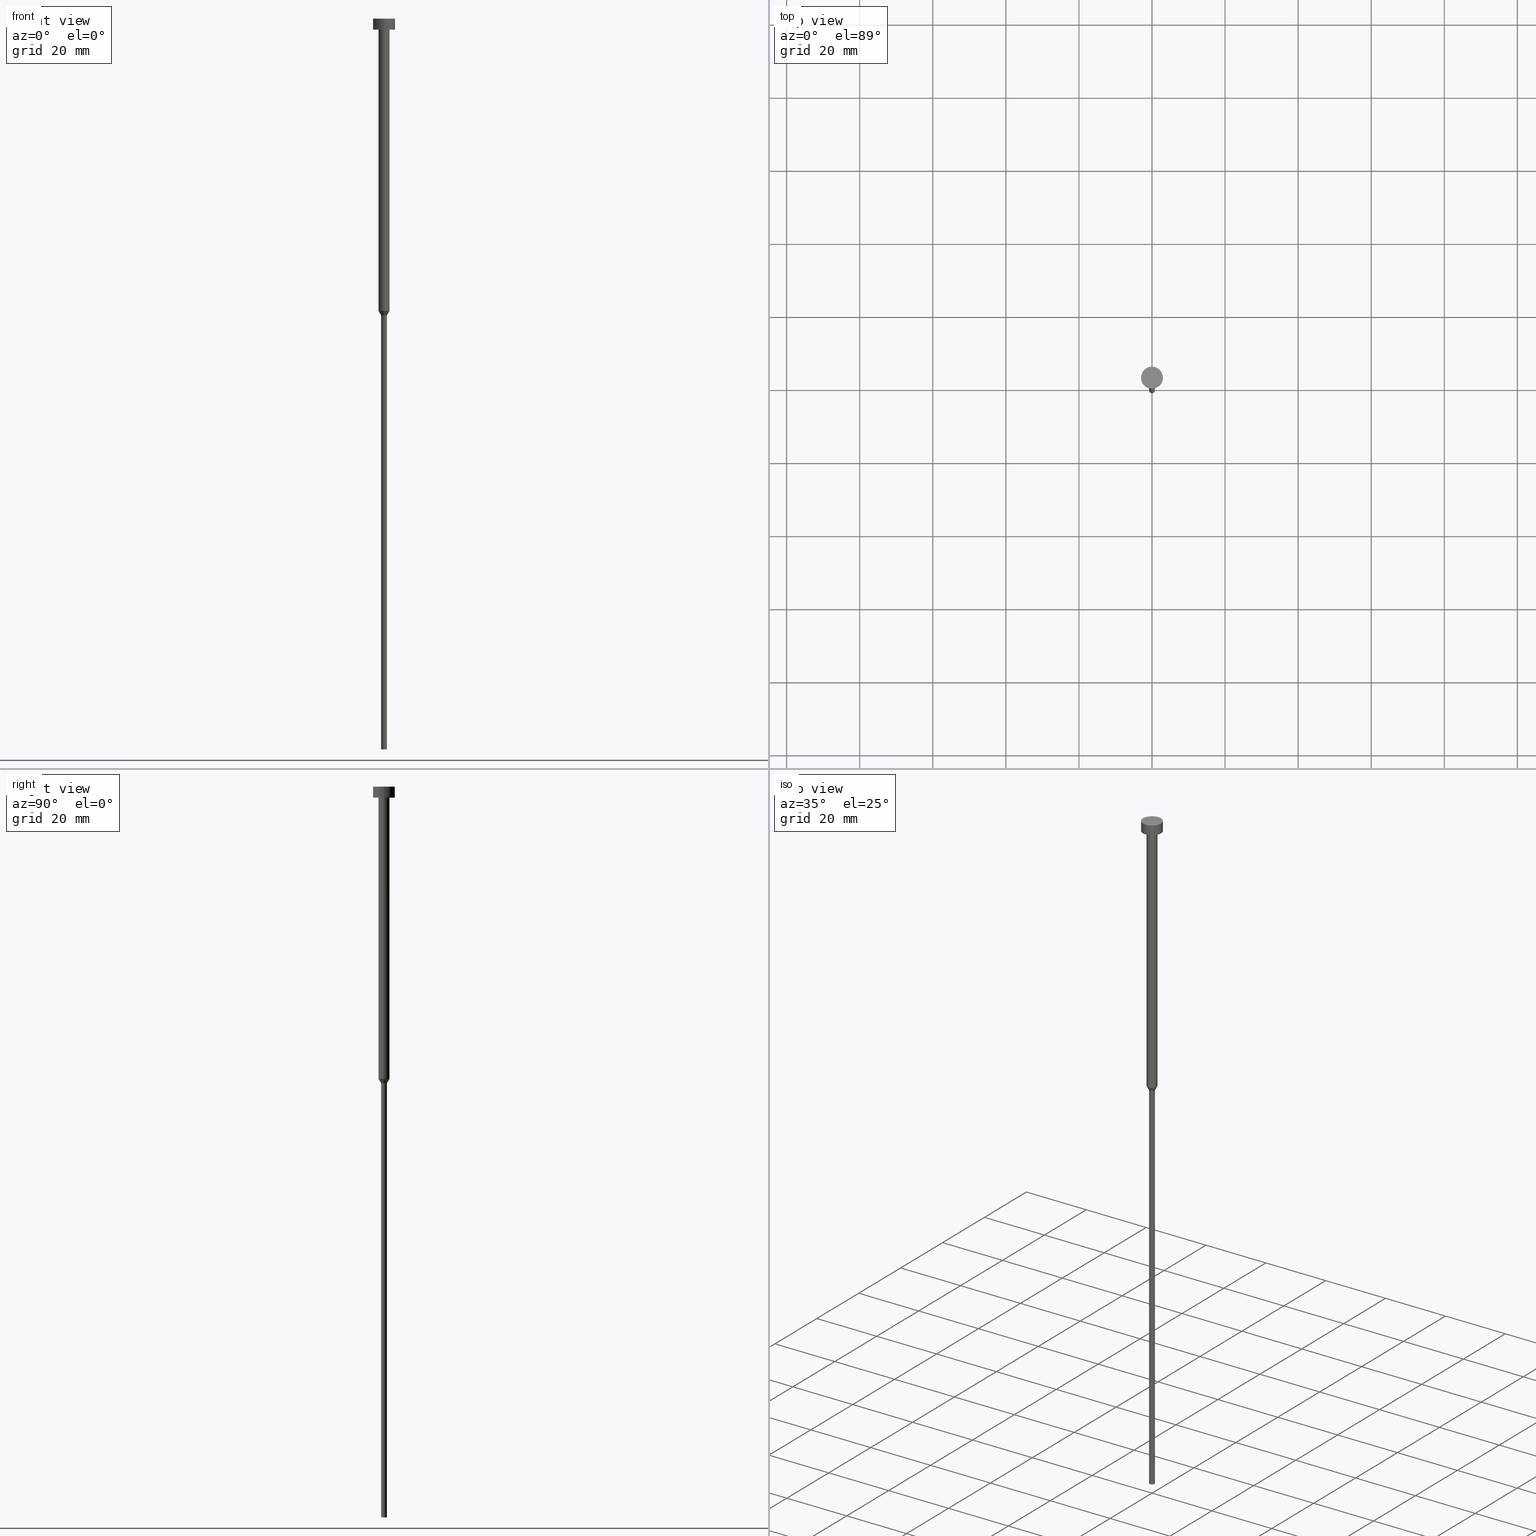
[diagram: canonical four-view strip — front | top / right | iso, engineering-drawing reading convention]
A machine part, canonical four-view strip (front | top / right | iso — engineering-drawing reading convention). The complete STEP part file that produces these views, byte-faithful:
ISO-10303-21;
HEADER;
FILE_DESCRIPTION (( 'STEP AP203' ),
    '1' );
FILE_NAME ('57c9.STEP',
    '2023-02-13T09:04:29',
    ( '' ),
    ( '' ),
    'SwSTEP 2.0',
    'SolidWorks 2019',
    '' );
FILE_SCHEMA (( 'CONFIG_CONTROL_DESIGN' ));
ENDSEC;

DATA;
#1 = APPLICATION_PROTOCOL_DEFINITION ( 'international standard', 'config_control_design', 1994, #201 ) ;
#2 = AXIS2_PLACEMENT_3D ( 'NONE', #238, #148, #14 ) ;
#3 = PRODUCT_DEFINITION ( 'NEZN�M�', '', #86, #133 ) ;
#4 = FACE_OUTER_BOUND ( 'NONE', #124, .T. ) ;
#5 = CLOSED_SHELL ( 'NONE', ( #288, #252, #293, #257, #110, #167, #223, #353, #328, #50, #55 ) ) ;
#6 = DIRECTION ( 'NONE',  ( 1.000000000000000000, 0.000000000000000000, 0.000000000000000000 ) ) ;
#7 = CARTESIAN_POINT ( 'NONE',  ( 1.500000000000000000, 0.000000000000000000, -80.00000000000000000 ) ) ;
#8 = EDGE_CURVE ( 'NONE', #15, #264, #226, .T. ) ;
#9 = CARTESIAN_POINT ( 'NONE',  ( -0.8000000000000000444, 9.797174393178826150E-17, 0.000000000000000000 ) ) ;
#10 = CIRCLE ( 'NONE', #64, 3.000000000000000000 ) ;
#11 = FACE_OUTER_BOUND ( 'NONE', #195, .T. ) ;
#12 = ORIENTED_EDGE ( 'NONE', *, *, #151, .T. ) ;
#13 = APPROVAL_DATE_TIME ( #94, #277 ) ;
#14 = DIRECTION ( 'NONE',  ( 1.000000000000000000, 0.000000000000000000, 0.000000000000000000 ) ) ;
#15 = VERTEX_POINT ( 'NONE', #239 ) ;
#16 = APPROVAL ( #108, 'NEUR�EN�' ) ;
#17 = DIRECTION ( 'NONE',  ( -0.000000000000000000, -0.000000000000000000, 1.000000000000000000 ) ) ;
#18 = CARTESIAN_POINT ( 'NONE',  ( 0.000000000000000000, 0.000000000000000000, -80.00000000000000000 ) ) ;
#19 = CARTESIAN_POINT ( 'NONE',  ( -3.000000000000000000, 3.673940397442059868E-16, -3.673940397442059868E-16 ) ) ;
#20 = AXIS2_PLACEMENT_3D ( 'NONE', #155, #17, #347 ) ;
#21 = VERTEX_POINT ( 'NONE', #128 ) ;
#22 = DIRECTION ( 'NONE',  ( 1.000000000000000000, 0.000000000000000000, 0.000000000000000000 ) ) ;
#23 = ORIENTED_EDGE ( 'NONE', *, *, #151, .F. ) ;
#24 = EDGE_CURVE ( 'NONE', #351, #332, #339, .T. ) ;
#25 = APPROVAL_ROLE ( '' ) ;
#26 = APPLICATION_PROTOCOL_DEFINITION ( 'international standard', 'config_control_design', 1994, #285 ) ;
#27 = AXIS2_PLACEMENT_3D ( 'NONE', #299, #245, #345 ) ;
#28 = PERSON_AND_ORGANIZATION ( #99, #136 ) ;
#29 = CC_DESIGN_PERSON_AND_ORGANIZATION_ASSIGNMENT ( #213, #325, ( #86 ) ) ;
#30 = CYLINDRICAL_SURFACE ( 'NONE', #114, 1.500000000000000000 ) ;
#31 = DATE_AND_TIME ( #281, #154 ) ;
#32 = APPROVAL_ROLE ( '' ) ;
#33 = EDGE_CURVE ( 'NONE', #225, #268, #352, .T. ) ;
#34 = CYLINDRICAL_SURFACE ( 'NONE', #101, 0.8000000000000000444 ) ;
#35 = EDGE_CURVE ( 'NONE', #332, #202, #196, .T. ) ;
#36 = LINE ( 'NONE', #164, #349 ) ;
#37 = FACE_OUTER_BOUND ( 'NONE', #74, .T. ) ;
#38 = AXIS2_PLACEMENT_3D ( 'NONE', #137, #45, #273 ) ;
#39 = APPROVAL_PERSON_ORGANIZATION ( #42, #277, #32 ) ;
#40 = DIRECTION ( 'NONE',  ( -0.000000000000000000, -0.000000000000000000, 1.000000000000000000 ) ) ;
#41 = ORIENTED_EDGE ( 'NONE', *, *, #263, .F. ) ;
#42 = PERSON_AND_ORGANIZATION ( #99, #136 ) ;
#43 = CARTESIAN_POINT ( 'NONE',  ( 0.8000000000000001554, 0.000000000000000000, -81.21243556529820751 ) ) ;
#44 = ORIENTED_EDGE ( 'NONE', *, *, #96, .T. ) ;
#45 = DIRECTION ( 'NONE',  ( -0.000000000000000000, -0.000000000000000000, 1.000000000000000000 ) ) ;
#46 = ORIENTED_EDGE ( 'NONE', *, *, #243, .T. ) ;
#47 = DATE_AND_TIME ( #76, #57 ) ;
#48 = AXIS2_PLACEMENT_3D ( 'NONE', #111, #314, #232 ) ;
#49 = ORIENTED_EDGE ( 'NONE', *, *, #33, .T. ) ;
#50 = ADVANCED_FACE ( 'NONE', ( #37 ), #169, .T. ) ;
#51 = SHAPE_DEFINITION_REPRESENTATION ( #302, #207 ) ;
#52 = FACE_OUTER_BOUND ( 'NONE', #112, .T. ) ;
#53 = ORIENTED_EDGE ( 'NONE', *, *, #243, .F. ) ;
#54 = FACE_OUTER_BOUND ( 'NONE', #259, .T. ) ;
#55 = ADVANCED_FACE ( 'NONE', ( #139 ), #199, .T. ) ;
#56 = AXIS2_PLACEMENT_3D ( 'NONE', #18, #271, #324 ) ;
#57 = LOCAL_TIME ( 10, 4, 29.00000000000000000, #191 ) ;
#58 = ORIENTED_EDGE ( 'NONE', *, *, #348, .F. ) ;
#59 = PERSON_AND_ORGANIZATION_ROLE ( 'design_owner' ) ;
#60 = LINE ( 'NONE', #221, #222 ) ;
#61 = PERSON_AND_ORGANIZATION ( #99, #136 ) ;
#62 = CARTESIAN_POINT ( 'NONE',  ( 0.000000000000000000, 0.000000000000000000, 0.000000000000000000 ) ) ;
#63 = FACE_OUTER_BOUND ( 'NONE', #295, .T. ) ;
#64 = AXIS2_PLACEMENT_3D ( 'NONE', #270, #73, #236 ) ;
#65 = LOCAL_TIME ( 10, 4, 29.00000000000000000, #72 ) ;
#66 = DIRECTION ( 'NONE',  ( 0.5000000000000015543, 0.000000000000000000, 0.8660254037844377084 ) ) ;
#67 = ORIENTED_EDGE ( 'NONE', *, *, #92, .T. ) ;
#68 = DIRECTION ( 'NONE',  ( -0.000000000000000000, -0.000000000000000000, 1.000000000000000000 ) ) ;
#69 = VERTEX_POINT ( 'NONE', #227 ) ;
#70 = AXIS2_PLACEMENT_3D ( 'NONE', #208, #321, #355 ) ;
#71 = DIRECTION ( 'NONE',  ( 1.000000000000000000, 0.000000000000000000, 0.000000000000000000 ) ) ;
#72 = COORDINATED_UNIVERSAL_TIME_OFFSET ( 1, 0, .AHEAD. ) ;
#73 = DIRECTION ( 'NONE',  ( -0.000000000000000000, -0.000000000000000000, 1.000000000000000000 ) ) ;
#74 = EDGE_LOOP ( 'NONE', ( #296, #335, #49, #198 ) ) ;
#75 = FACE_OUTER_BOUND ( 'NONE', #298, .T. ) ;
#76 = CALENDAR_DATE ( 2023, 13, 2 ) ;
#77 = ORIENTED_EDGE ( 'NONE', *, *, #305, .T. ) ;
#78 = CARTESIAN_POINT ( 'NONE',  ( -1.500000000000000000, 1.836970198721029934E-16, 0.000000000000000000 ) ) ;
#79 = EDGE_CURVE ( 'NONE', #202, #181, #182, .T. ) ;
#80 = CARTESIAN_POINT ( 'NONE',  ( 3.000000000000000000, 0.000000000000000000, -3.673940397442059868E-16 ) ) ;
#81 = PERSON_AND_ORGANIZATION ( #99, #136 ) ;
#82 = VECTOR ( 'NONE', #129, 1000.000000000000000 ) ;
#83 = APPROVAL_PERSON_ORGANIZATION ( #280, #16, #25 ) ;
#84 = CARTESIAN_POINT ( 'NONE',  ( 3.000000000000000000, 0.000000000000000000, 0.000000000000000000 ) ) ;
#85 = COORDINATED_UNIVERSAL_TIME_OFFSET ( 1, 0, .AHEAD. ) ;
#86 = PRODUCT_DEFINITION_FORMATION_WITH_SPECIFIED_SOURCE ( 'LIBOVOLN�', '', #244, .NOT_KNOWN. ) ;
#87 = DIRECTION ( 'NONE',  ( 1.000000000000000000, 0.000000000000000000, 0.000000000000000000 ) ) ;
#88 = PERSON_AND_ORGANIZATION_ROLE ( 'classification_officer' ) ;
#89 = CARTESIAN_POINT ( 'NONE',  ( -3.000000000000000000, 3.673940397442059868E-16, -3.000000000000000888 ) ) ;
#90 = CIRCLE ( 'NONE', #301, 3.000000000000000000 ) ;
#91 = DIRECTION ( 'NONE',  ( -1.000000000000000000, 0.000000000000000000, -0.000000000000000000 ) ) ;
#92 = EDGE_CURVE ( 'NONE', #319, #268, #90, .T. ) ;
#93 = ORIENTED_EDGE ( 'NONE', *, *, #316, .F. ) ;
#94 = DATE_AND_TIME ( #253, #65 ) ;
#95 = VERTEX_POINT ( 'NONE', #89 ) ;
#96 = EDGE_CURVE ( 'NONE', #332, #351, #187, .T. ) ;
#97 = CC_DESIGN_DATE_AND_TIME_ASSIGNMENT ( #329, #160, ( #3 ) ) ;
#98 = DIRECTION ( 'NONE',  ( 1.000000000000000000, 0.000000000000000000, 0.000000000000000000 ) ) ;
#99 = PERSON ( 'NEUR�EN�', 'NEUR�EN�', 'NEUR�EN�', ('NEUR�EN�'), ('NEUR�EN�'), ('NEUR�EN�') ) ;
#100 = ORIENTED_EDGE ( 'NONE', *, *, #8, .T. ) ;
#101 = AXIS2_PLACEMENT_3D ( 'NONE', #258, #224, #341 ) ;
#102 = EDGE_LOOP ( 'NONE', ( #242, #44, #237, #300 ) ) ;
#103 = ORIENTED_EDGE ( 'NONE', *, *, #305, .F. ) ;
#104 = PERSON_AND_ORGANIZATION ( #99, #136 ) ;
#105 = DIRECTION ( 'NONE',  ( 1.000000000000000000, 0.000000000000000000, 0.000000000000000000 ) ) ;
#106 = CC_DESIGN_APPROVAL ( #157, ( #3 ) ) ;
#107 = DIRECTION ( 'NONE',  ( -0.000000000000000000, -0.000000000000000000, 1.000000000000000000 ) ) ;
#108 = APPROVAL_STATUS ( 'not_yet_approved' ) ;
#109 = AXIS2_PLACEMENT_3D ( 'NONE', #197, #331, #292 ) ;
#110 = ADVANCED_FACE ( 'NONE', ( #4 ), #307, .T. ) ;
#111 = CARTESIAN_POINT ( 'NONE',  ( 0.000000000000000000, 0.000000000000000000, -1.836970198721029934E-16 ) ) ;
#112 = EDGE_LOOP ( 'NONE', ( #209, #93 ) ) ;
#113 = LINE ( 'NONE', #337, #303 ) ;
#114 = AXIS2_PLACEMENT_3D ( 'NONE', #62, #279, #105 ) ;
#115 = EDGE_CURVE ( 'NONE', #69, #21, #294, .T. ) ;
#116 = MANIFOLD_SOLID_BREP ( 'Rotovat1', #5 ) ;
#117 = DIRECTION ( 'NONE',  ( 1.000000000000000000, 0.000000000000000000, 0.000000000000000000 ) ) ;
#118 = ORIENTED_EDGE ( 'NONE', *, *, #348, .T. ) ;
#119 = DIRECTION ( 'NONE',  ( -0.000000000000000000, -0.000000000000000000, 1.000000000000000000 ) ) ;
#120 = CONICAL_SURFACE ( 'NONE', #38, 1.500000000000000000, 0.5235987755983007030 ) ;
#121 = LOCAL_TIME ( 10, 4, 29.00000000000000000, #186 ) ;
#122 = CARTESIAN_POINT ( 'NONE',  ( 0.000000000000000000, 0.000000000000000000, 0.000000000000000000 ) ) ;
#123 = DIRECTION ( 'NONE',  ( -0.000000000000000000, -0.000000000000000000, 1.000000000000000000 ) ) ;
#124 = EDGE_LOOP ( 'NONE', ( #147, #214 ) ) ;
#125 = DIRECTION ( 'NONE',  ( -0.000000000000000000, -0.000000000000000000, 1.000000000000000000 ) ) ;
#126 = ORIENTED_EDGE ( 'NONE', *, *, #338, .T. ) ;
#127 = AXIS2_PLACEMENT_3D ( 'NONE', #142, #334, #91 ) ;
#128 = CARTESIAN_POINT ( 'NONE',  ( -1.500000000000000000, 1.836970198721029934E-16, -3.000000000000000888 ) ) ;
#129 = DIRECTION ( 'NONE',  ( -0.000000000000000000, -0.000000000000000000, 1.000000000000000000 ) ) ;
#130 = DIRECTION ( 'NONE',  ( -0.000000000000000000, -0.000000000000000000, 1.000000000000000000 ) ) ;
#131 = COORDINATED_UNIVERSAL_TIME_OFFSET ( 1, 0, .AHEAD. ) ;
#132 = AXIS2_PLACEMENT_3D ( 'NONE', #122, #125, #317 ) ;
#133 = DESIGN_CONTEXT ( 'detailed design', #285, 'design' ) ;
#134 = EDGE_CURVE ( 'NONE', #268, #319, #170, .T. ) ;
#135 = APPROVAL_DATE_TIME ( #31, #16 ) ;
#136 = ORGANIZATION ( 'NEUR�EN�', 'NEUR�EN�', '' ) ;
#137 = CARTESIAN_POINT ( 'NONE',  ( 0.000000000000000000, 0.000000000000000000, -80.00000000000000000 ) ) ;
#138 = ORIENTED_EDGE ( 'NONE', *, *, #171, .F. ) ;
#139 = FACE_OUTER_BOUND ( 'NONE', #322, .T. ) ;
#140 = CARTESIAN_POINT ( 'NONE',  ( 0.000000000000000000, 0.000000000000000000, -3.673940397442059868E-16 ) ) ;
#141 = VECTOR ( 'NONE', #283, 1000.000000000000000 ) ;
#142 = CARTESIAN_POINT ( 'NONE',  ( 0.000000000000000000, 0.000000000000000000, -200.0000000000000000 ) ) ;
#143 = ORIENTED_EDGE ( 'NONE', *, *, #134, .T. ) ;
#144 = LINE ( 'NONE', #260, #240 ) ;
#145 = PRODUCT_RELATED_PRODUCT_CATEGORY ( 'detail', '', ( #244 ) ) ;
#146 = DIRECTION ( 'NONE',  ( -0.000000000000000000, -0.000000000000000000, 1.000000000000000000 ) ) ;
#147 = ORIENTED_EDGE ( 'NONE', *, *, #24, .F. ) ;
#148 = DIRECTION ( 'NONE',  ( -0.000000000000000000, -0.000000000000000000, 1.000000000000000000 ) ) ;
#149 = CARTESIAN_POINT ( 'NONE',  ( 0.000000000000000000, -3.000000000000000000, -3.000000000000000888 ) ) ;
#150 = ORIENTED_EDGE ( 'NONE', *, *, #333, .T. ) ;
#151 = EDGE_CURVE ( 'NONE', #202, #264, #113, .T. ) ;
#152 = DIRECTION ( 'NONE',  ( 1.000000000000000000, 0.000000000000000000, 0.000000000000000000 ) ) ;
#153 = ORIENTED_EDGE ( 'NONE', *, *, #171, .T. ) ;
#154 = LOCAL_TIME ( 10, 4, 29.00000000000000000, #85 ) ;
#155 = CARTESIAN_POINT ( 'NONE',  ( 0.000000000000000000, 0.000000000000000000, -81.21243556529820751 ) ) ;
#156 = EDGE_LOOP ( 'NONE', ( #326, #46 ) ) ;
#157 = APPROVAL ( #275, 'NEUR�EN�' ) ;
#158 = CARTESIAN_POINT ( 'NONE',  ( 0.000000000000000000, 0.000000000000000000, 0.000000000000000000 ) ) ;
#159 = CC_DESIGN_APPROVAL ( #16, ( #86 ) ) ;
#160 = DATE_TIME_ROLE ( 'creation_date' ) ;
#161 = FACE_OUTER_BOUND ( 'NONE', #350, .T. ) ;
#162 = UNCERTAINTY_MEASURE_WITH_UNIT (LENGTH_MEASURE( 1.000000000000000082E-05 ), #330, 'distance_accuracy_value', 'NONE');
#163 = AXIS2_PLACEMENT_3D ( 'NONE', #318, #123, #152 ) ;
#164 = CARTESIAN_POINT ( 'NONE',  ( 0.8000000000000000444, 0.000000000000000000, 0.000000000000000000 ) ) ;
#165 = CC_DESIGN_SECURITY_CLASSIFICATION ( #308, ( #86 ) ) ;
#166 = LINE ( 'NONE', #7, #278 ) ;
#167 = ADVANCED_FACE ( 'NONE', ( #310 ), #34, .T. ) ;
#168 = DIRECTION ( 'NONE',  ( -0.000000000000000000, -0.000000000000000000, 1.000000000000000000 ) ) ;
#169 = CYLINDRICAL_SURFACE ( 'NONE', #272, 3.000000000000000000 ) ;
#170 = CIRCLE ( 'NONE', #256, 3.000000000000000000 ) ;
#171 = EDGE_CURVE ( 'NONE', #181, #15, #166, .T. ) ;
#172 = DIRECTION ( 'NONE',  ( -0.000000000000000000, -0.000000000000000000, 1.000000000000000000 ) ) ;
#173 = ORIENTED_EDGE ( 'NONE', *, *, #333, .F. ) ;
#174 = FACE_BOUND ( 'NONE', #156, .T. ) ;
#175 = PLANE ( 'NONE',  #262 ) ;
#176 = CIRCLE ( 'NONE', #163, 1.500000000000000000 ) ;
#177 = DATE_TIME_ROLE ( 'classification_date' ) ;
#178 = LINE ( 'NONE', #78, #82 ) ;
#179 = ORIENTED_EDGE ( 'NONE', *, *, #8, .F. ) ;
#180 = DIRECTION ( 'NONE',  ( -1.000000000000000000, 0.000000000000000000, -0.000000000000000000 ) ) ;
#181 = VERTEX_POINT ( 'NONE', #43 ) ;
#182 = CIRCLE ( 'NONE', #248, 0.8000000000000001554 ) ;
#183 = CIRCLE ( 'NONE', #70, 3.000000000000000000 ) ;
#184 = CARTESIAN_POINT ( 'NONE',  ( 0.7999999999999999334, 0.000000000000000000, -200.0000000000000000 ) ) ;
#185 = SECURITY_CLASSIFICATION_LEVEL ( 'unclassified' ) ;
#186 = COORDINATED_UNIVERSAL_TIME_OFFSET ( 1, 0, .AHEAD. ) ;
#187 = CIRCLE ( 'NONE', #205, 0.7999999999999999334 ) ;
#188 = APPROVAL_ROLE ( '' ) ;
#189 = CIRCLE ( 'NONE', #2, 1.500000000000000000 ) ;
#190 = DATE_AND_TIME ( #251, #121 ) ;
#191 = COORDINATED_UNIVERSAL_TIME_OFFSET ( 1, 0, .AHEAD. ) ;
#192 = DIRECTION ( 'NONE',  ( -0.000000000000000000, -0.000000000000000000, 1.000000000000000000 ) ) ;
#193 = EDGE_CURVE ( 'NONE', #95, #319, #144, .T. ) ;
#194 = CIRCLE ( 'NONE', #20, 0.8000000000000001554 ) ;
#195 = EDGE_LOOP ( 'NONE', ( #126, #315, #346, #291 ) ) ;
#196 = LINE ( 'NONE', #9, #289 ) ;
#197 = CARTESIAN_POINT ( 'NONE',  ( 0.000000000000000000, 0.000000000000000000, -3.000000000000000888 ) ) ;
#198 = ORIENTED_EDGE ( 'NONE', *, *, #92, .F. ) ;
#199 = PLANE ( 'NONE',  #48 ) ;
#200 = CYLINDRICAL_SURFACE ( 'NONE', #233, 1.500000000000000000 ) ;
#201 = APPLICATION_CONTEXT ( 'configuration controlled 3d designs of mechanical parts and assemblies' ) ;
#202 = VERTEX_POINT ( 'NONE', #286 ) ;
#203 = CARTESIAN_POINT ( 'NONE',  ( 3.000000000000000000, 0.000000000000000000, -3.000000000000000888 ) ) ;
#204 = ORIENTED_EDGE ( 'NONE', *, *, #263, .T. ) ;
#205 = AXIS2_PLACEMENT_3D ( 'NONE', #309, #68, #6 ) ;
#206 = AXIS2_PLACEMENT_3D ( 'NONE', #158, #218, #87 ) ;
#207 = ADVANCED_BREP_SHAPE_REPRESENTATION ( '57c9', ( #116, #206 ), #320 ) ;
#208 = CARTESIAN_POINT ( 'NONE',  ( 0.000000000000000000, 0.000000000000000000, -3.000000000000000888 ) ) ;
#209 = ORIENTED_EDGE ( 'NONE', *, *, #338, .F. ) ;
#210 = CARTESIAN_POINT ( 'NONE',  ( -1.500000000000000000, 1.836970198721029934E-16, -80.00000000000000000 ) ) ;
#211 = ORIENTED_EDGE ( 'NONE', *, *, #219, .F. ) ;
#212 = CC_DESIGN_DATE_AND_TIME_ASSIGNMENT ( #47, #177, ( #308 ) ) ;
#213 = PERSON_AND_ORGANIZATION ( #99, #136 ) ;
#214 = ORIENTED_EDGE ( 'NONE', *, *, #96, .F. ) ;
#215 = AXIS2_PLACEMENT_3D ( 'NONE', #267, #297, #22 ) ;
#216 = CALENDAR_DATE ( 2023, 13, 2 ) ;
#217 =( NAMED_UNIT ( * ) SI_UNIT ( $, .STERADIAN. ) SOLID_ANGLE_UNIT ( ) );
#218 = DIRECTION ( 'NONE',  ( 0.000000000000000000, 0.000000000000000000, 1.000000000000000000 ) ) ;
#219 = EDGE_CURVE ( 'NONE', #351, #181, #36, .T. ) ;
#220 = AXIS2_PLACEMENT_3D ( 'NONE', #274, #130, #246 ) ;
#221 = CARTESIAN_POINT ( 'NONE',  ( 1.500000000000000000, 0.000000000000000000, 0.000000000000000000 ) ) ;
#222 = VECTOR ( 'NONE', #107, 1000.000000000000000 ) ;
#223 = ADVANCED_FACE ( 'NONE', ( #63 ), #120, .T. ) ;
#224 = DIRECTION ( 'NONE',  ( -0.000000000000000000, -0.000000000000000000, 1.000000000000000000 ) ) ;
#225 = VERTEX_POINT ( 'NONE', #203 ) ;
#226 = CIRCLE ( 'NONE', #56, 1.500000000000000000 ) ;
#227 = CARTESIAN_POINT ( 'NONE',  ( 1.500000000000000000, 0.000000000000000000, -3.000000000000000888 ) ) ;
#228 = ORIENTED_EDGE ( 'NONE', *, *, #35, .T. ) ;
#229 = DIRECTION ( 'NONE',  ( 1.000000000000000000, 0.000000000000000000, 0.000000000000000000 ) ) ;
#230 = DIRECTION ( 'NONE',  ( -0.000000000000000000, -0.000000000000000000, 1.000000000000000000 ) ) ;
#231 = ORIENTED_EDGE ( 'NONE', *, *, #115, .F. ) ;
#232 = DIRECTION ( 'NONE',  ( 1.000000000000000000, 0.000000000000000000, 0.000000000000000000 ) ) ;
#233 = AXIS2_PLACEMENT_3D ( 'NONE', #241, #146, #98 ) ;
#234 = LOCAL_TIME ( 10, 4, 29.00000000000000000, #131 ) ;
#235 = CYLINDRICAL_SURFACE ( 'NONE', #215, 0.8000000000000000444 ) ;
#236 = DIRECTION ( 'NONE',  ( 1.000000000000000000, 0.000000000000000000, 0.000000000000000000 ) ) ;
#237 = ORIENTED_EDGE ( 'NONE', *, *, #219, .T. ) ;
#238 = CARTESIAN_POINT ( 'NONE',  ( 0.000000000000000000, 0.000000000000000000, -3.000000000000000888 ) ) ;
#239 = CARTESIAN_POINT ( 'NONE',  ( 1.500000000000000000, 0.000000000000000000, -80.00000000000000000 ) ) ;
#240 = VECTOR ( 'NONE', #192, 1000.000000000000000 ) ;
#241 = CARTESIAN_POINT ( 'NONE',  ( 0.000000000000000000, 0.000000000000000000, 0.000000000000000000 ) ) ;
#242 = ORIENTED_EDGE ( 'NONE', *, *, #35, .F. ) ;
#243 = EDGE_CURVE ( 'NONE', #21, #69, #189, .T. ) ;
#244 = PRODUCT ( '57c9', '57c9', '', ( #306 ) ) ;
#245 = DIRECTION ( 'NONE',  ( -0.000000000000000000, -0.000000000000000000, 1.000000000000000000 ) ) ;
#246 = DIRECTION ( 'NONE',  ( 1.000000000000000000, 0.000000000000000000, 0.000000000000000000 ) ) ;
#247 = PERSON_AND_ORGANIZATION_ROLE ( 'creator' ) ;
#248 = AXIS2_PLACEMENT_3D ( 'NONE', #255, #230, #229 ) ;
#249 = PERSON_AND_ORGANIZATION_ROLE ( 'creator' ) ;
#250 = CC_DESIGN_PERSON_AND_ORGANIZATION_ASSIGNMENT ( #104, #247, ( #86 ) ) ;
#251 = CALENDAR_DATE ( 2023, 13, 2 ) ;
#252 = ADVANCED_FACE ( 'NONE', ( #323 ), #200, .T. ) ;
#253 = CALENDAR_DATE ( 2023, 13, 2 ) ;
#254 = CARTESIAN_POINT ( 'NONE',  ( 0.000000000000000000, 0.000000000000000000, 0.000000000000000000 ) ) ;
#255 = CARTESIAN_POINT ( 'NONE',  ( 0.000000000000000000, 0.000000000000000000, -81.21243556529820751 ) ) ;
#256 = AXIS2_PLACEMENT_3D ( 'NONE', #312, #40, #71 ) ;
#257 = ADVANCED_FACE ( 'NONE', ( #75 ), #235, .T. ) ;
#258 = CARTESIAN_POINT ( 'NONE',  ( 0.000000000000000000, 0.000000000000000000, 0.000000000000000000 ) ) ;
#259 = EDGE_LOOP ( 'NONE', ( #150, #12, #179, #138 ) ) ;
#260 = CARTESIAN_POINT ( 'NONE',  ( -3.000000000000000000, 3.673940397442059868E-16, 0.000000000000000000 ) ) ;
#261 = DIRECTION ( 'NONE',  ( 0.000000000000000000, 0.000000000000000000, -1.000000000000000000 ) ) ;
#262 = AXIS2_PLACEMENT_3D ( 'NONE', #149, #261, #180 ) ;
#263 = EDGE_CURVE ( 'NONE', #264, #21, #178, .T. ) ;
#264 = VERTEX_POINT ( 'NONE', #210 ) ;
#265 = CC_DESIGN_APPROVAL ( #277, ( #308 ) ) ;
#266 = CC_DESIGN_PERSON_AND_ORGANIZATION_ASSIGNMENT ( #81, #88, ( #308 ) ) ;
#267 = CARTESIAN_POINT ( 'NONE',  ( 0.000000000000000000, 0.000000000000000000, 0.000000000000000000 ) ) ;
#268 = VERTEX_POINT ( 'NONE', #80 ) ;
#269 = CARTESIAN_POINT ( 'NONE',  ( -0.7999999999999999334, 9.797174393178826150E-17, -200.0000000000000000 ) ) ;
#270 = CARTESIAN_POINT ( 'NONE',  ( 0.000000000000000000, 0.000000000000000000, -3.000000000000000888 ) ) ;
#271 = DIRECTION ( 'NONE',  ( -0.000000000000000000, -0.000000000000000000, 1.000000000000000000 ) ) ;
#272 = AXIS2_PLACEMENT_3D ( 'NONE', #254, #119, #117 ) ;
#273 = DIRECTION ( 'NONE',  ( 1.000000000000000000, 0.000000000000000000, 0.000000000000000000 ) ) ;
#274 = CARTESIAN_POINT ( 'NONE',  ( 0.000000000000000000, 0.000000000000000000, -200.0000000000000000 ) ) ;
#275 = APPROVAL_STATUS ( 'not_yet_approved' ) ;
#276 = PERSON_AND_ORGANIZATION ( #99, #136 ) ;
#277 = APPROVAL ( #284, 'NEUR�EN�' ) ;
#278 = VECTOR ( 'NONE', #66, 1000.000000000000227 ) ;
#279 = DIRECTION ( 'NONE',  ( -0.000000000000000000, -0.000000000000000000, 1.000000000000000000 ) ) ;
#280 = PERSON_AND_ORGANIZATION ( #99, #136 ) ;
#281 = CALENDAR_DATE ( 2023, 13, 2 ) ;
#282 = CC_DESIGN_PERSON_AND_ORGANIZATION_ASSIGNMENT ( #61, #249, ( #3 ) ) ;
#283 = DIRECTION ( 'NONE',  ( -0.000000000000000000, -0.000000000000000000, 1.000000000000000000 ) ) ;
#284 = APPROVAL_STATUS ( 'not_yet_approved' ) ;
#285 = APPLICATION_CONTEXT ( 'configuration controlled 3d designs of mechanical parts and assemblies' ) ;
#286 = CARTESIAN_POINT ( 'NONE',  ( -0.8000000000000002665, 9.797174393178828616E-17, -81.21243556529820751 ) ) ;
#287 = DIRECTION ( 'NONE',  ( -0.000000000000000000, -0.000000000000000000, 1.000000000000000000 ) ) ;
#288 = ADVANCED_FACE ( 'NONE', ( #11 ), #343, .T. ) ;
#289 = VECTOR ( 'NONE', #172, 1000.000000000000000 ) ;
#290 = DIRECTION ( 'NONE',  ( -0.5000000000000015543, 6.123233995736783292E-17, 0.8660254037844377084 ) ) ;
#291 = ORIENTED_EDGE ( 'NONE', *, *, #33, .F. ) ;
#292 = DIRECTION ( 'NONE',  ( 1.000000000000000000, 0.000000000000000000, 0.000000000000000000 ) ) ;
#293 = ADVANCED_FACE ( 'NONE', ( #54 ), #327, .T. ) ;
#294 = CIRCLE ( 'NONE', #109, 1.500000000000000000 ) ;
#295 = EDGE_LOOP ( 'NONE', ( #23, #344, #153, #103 ) ) ;
#296 = ORIENTED_EDGE ( 'NONE', *, *, #193, .F. ) ;
#297 = DIRECTION ( 'NONE',  ( -0.000000000000000000, -0.000000000000000000, 1.000000000000000000 ) ) ;
#298 = EDGE_LOOP ( 'NONE', ( #313, #228, #173, #211 ) ) ;
#299 = CARTESIAN_POINT ( 'NONE',  ( 0.000000000000000000, 0.000000000000000000, -80.00000000000000000 ) ) ;
#300 = ORIENTED_EDGE ( 'NONE', *, *, #79, .F. ) ;
#301 = AXIS2_PLACEMENT_3D ( 'NONE', #140, #287, #336 ) ;
#302 = PRODUCT_DEFINITION_SHAPE ( 'NONE', 'NONE',  #3 ) ;
#303 = VECTOR ( 'NONE', #290, 1000.000000000000227 ) ;
#304 = APPROVAL_DATE_TIME ( #190, #157 ) ;
#305 = EDGE_CURVE ( 'NONE', #264, #15, #176, .T. ) ;
#306 = MECHANICAL_CONTEXT ( 'NONE', #201, 'mechanical' ) ;
#307 = PLANE ( 'NONE',  #127 ) ;
#308 = SECURITY_CLASSIFICATION ( '', '', #185 ) ;
#309 = CARTESIAN_POINT ( 'NONE',  ( 0.000000000000000000, 0.000000000000000000, -200.0000000000000000 ) ) ;
#310 = FACE_OUTER_BOUND ( 'NONE', #102, .T. ) ;
#311 = CC_DESIGN_PERSON_AND_ORGANIZATION_ASSIGNMENT ( #28, #59, ( #244 ) ) ;
#312 = CARTESIAN_POINT ( 'NONE',  ( 0.000000000000000000, 0.000000000000000000, -3.673940397442059868E-16 ) ) ;
#313 = ORIENTED_EDGE ( 'NONE', *, *, #24, .T. ) ;
#314 = DIRECTION ( 'NONE',  ( 0.000000000000000000, -0.000000000000000000, 1.000000000000000000 ) ) ;
#315 = ORIENTED_EDGE ( 'NONE', *, *, #193, .T. ) ;
#316 = EDGE_CURVE ( 'NONE', #95, #225, #10, .T. ) ;
#317 = DIRECTION ( 'NONE',  ( 1.000000000000000000, 0.000000000000000000, 0.000000000000000000 ) ) ;
#318 = CARTESIAN_POINT ( 'NONE',  ( 0.000000000000000000, 0.000000000000000000, -80.00000000000000000 ) ) ;
#319 = VERTEX_POINT ( 'NONE', #19 ) ;
#320 =( GEOMETRIC_REPRESENTATION_CONTEXT ( 3 ) GLOBAL_UNCERTAINTY_ASSIGNED_CONTEXT ( ( #162 ) ) GLOBAL_UNIT_ASSIGNED_CONTEXT ( ( #330, #354, #217 ) ) REPRESENTATION_CONTEXT ( 'NONE', 'WORKASPACE' ) );
#321 = DIRECTION ( 'NONE',  ( -0.000000000000000000, -0.000000000000000000, 1.000000000000000000 ) ) ;
#322 = EDGE_LOOP ( 'NONE', ( #143, #67 ) ) ;
#323 = FACE_OUTER_BOUND ( 'NONE', #342, .T. ) ;
#324 = DIRECTION ( 'NONE',  ( 1.000000000000000000, 0.000000000000000000, 0.000000000000000000 ) ) ;
#325 = PERSON_AND_ORGANIZATION_ROLE ( 'design_supplier' ) ;
#326 = ORIENTED_EDGE ( 'NONE', *, *, #115, .T. ) ;
#327 = CONICAL_SURFACE ( 'NONE', #27, 1.500000000000000000, 0.5235987755983007030 ) ;
#328 = ADVANCED_FACE ( 'NONE', ( #174, #52 ), #175, .T. ) ;
#329 = DATE_AND_TIME ( #216, #234 ) ;
#330 =( LENGTH_UNIT ( ) NAMED_UNIT ( * ) SI_UNIT ( .MILLI., .METRE. ) );
#331 = DIRECTION ( 'NONE',  ( -0.000000000000000000, -0.000000000000000000, 1.000000000000000000 ) ) ;
#332 = VERTEX_POINT ( 'NONE', #269 ) ;
#333 = EDGE_CURVE ( 'NONE', #181, #202, #194, .T. ) ;
#334 = DIRECTION ( 'NONE',  ( 0.000000000000000000, 0.000000000000000000, -1.000000000000000000 ) ) ;
#335 = ORIENTED_EDGE ( 'NONE', *, *, #316, .T. ) ;
#336 = DIRECTION ( 'NONE',  ( 1.000000000000000000, 0.000000000000000000, 0.000000000000000000 ) ) ;
#337 = CARTESIAN_POINT ( 'NONE',  ( -1.500000000000000000, 1.836970198721029934E-16, -80.00000000000000000 ) ) ;
#338 = EDGE_CURVE ( 'NONE', #225, #95, #183, .T. ) ;
#339 = CIRCLE ( 'NONE', #220, 0.7999999999999999334 ) ;
#340 = APPROVAL_PERSON_ORGANIZATION ( #276, #157, #188 ) ;
#341 = DIRECTION ( 'NONE',  ( 1.000000000000000000, 0.000000000000000000, 0.000000000000000000 ) ) ;
#342 = EDGE_LOOP ( 'NONE', ( #100, #204, #231, #58 ) ) ;
#343 = CYLINDRICAL_SURFACE ( 'NONE', #132, 3.000000000000000000 ) ;
#344 = ORIENTED_EDGE ( 'NONE', *, *, #79, .T. ) ;
#345 = DIRECTION ( 'NONE',  ( 1.000000000000000000, 0.000000000000000000, 0.000000000000000000 ) ) ;
#346 = ORIENTED_EDGE ( 'NONE', *, *, #134, .F. ) ;
#347 = DIRECTION ( 'NONE',  ( 1.000000000000000000, 0.000000000000000000, 0.000000000000000000 ) ) ;
#348 = EDGE_CURVE ( 'NONE', #15, #69, #60, .T. ) ;
#349 = VECTOR ( 'NONE', #168, 1000.000000000000000 ) ;
#350 = EDGE_LOOP ( 'NONE', ( #41, #77, #118, #53 ) ) ;
#351 = VERTEX_POINT ( 'NONE', #184 ) ;
#352 = LINE ( 'NONE', #84, #141 ) ;
#353 = ADVANCED_FACE ( 'NONE', ( #161 ), #30, .T. ) ;
#354 =( NAMED_UNIT ( * ) PLANE_ANGLE_UNIT ( ) SI_UNIT ( $, .RADIAN. ) );
#355 = DIRECTION ( 'NONE',  ( 1.000000000000000000, 0.000000000000000000, 0.000000000000000000 ) ) ;
ENDSEC;
END-ISO-10303-21;
